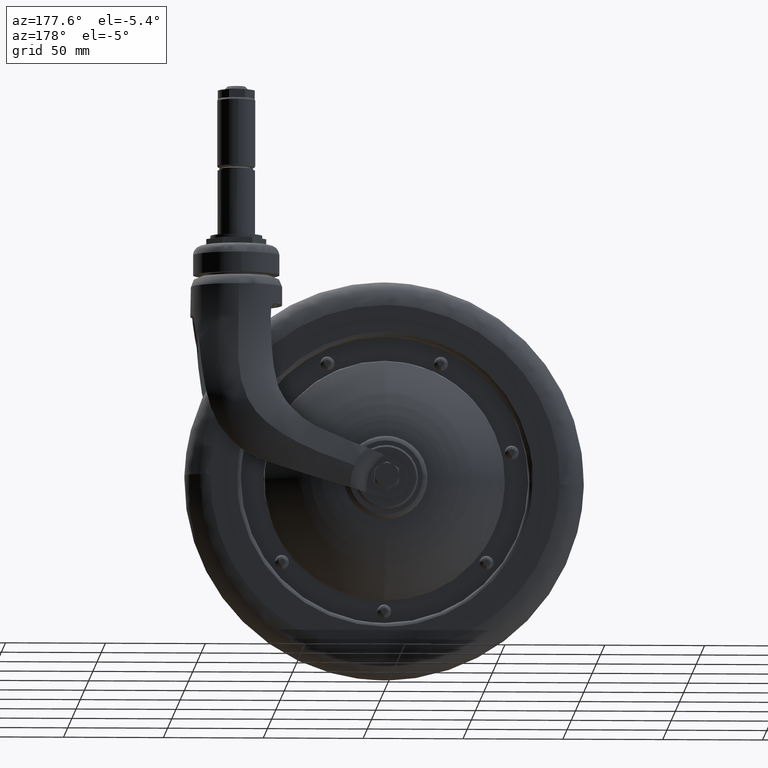
[diagram: clean part render]
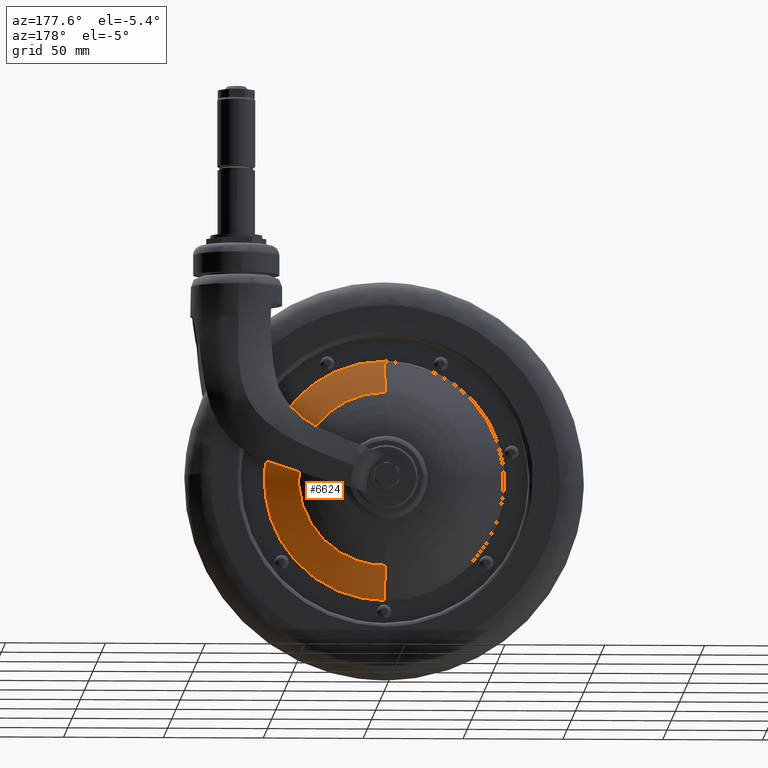
[diagram: same view with one face highlighted and labeled with its STEP entity id]
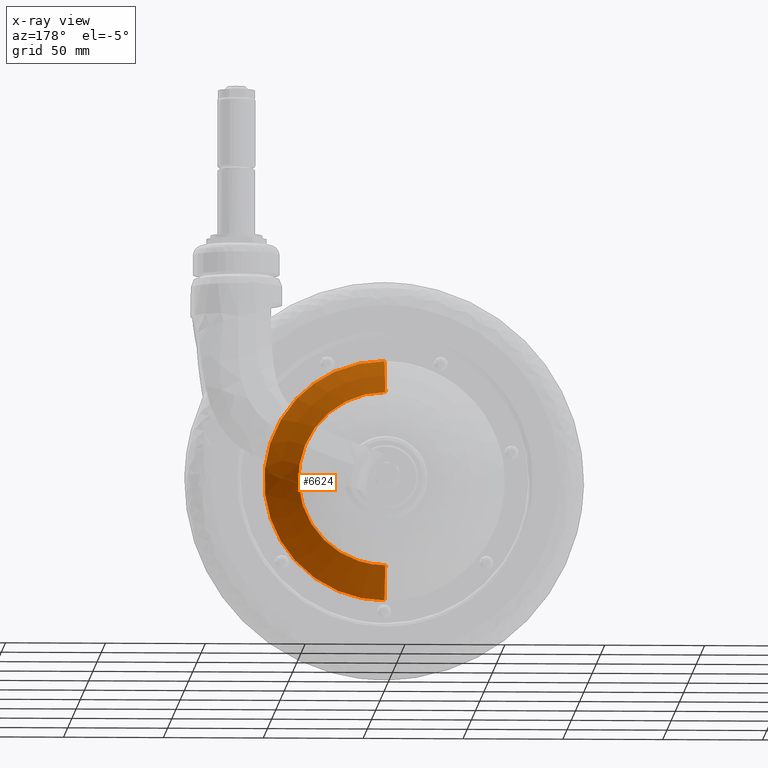
[diagram: x-ray of the same camera — body ghosted, the highlighted face saturated]
A machine part, auxiliary view. The second image highlights one B-rep face of the part: STEP entity #6624.
The next image is the same camera in x-ray: the body ghosted, the highlighted face saturated — about 0% of this face is hidden behind the body in this view.
In plain terms, the highlighted face is a freeform B-spline surface patch.
Its self-contained STEP definition (entity closure, byte-faithful):
#6289=CARTESIAN_POINT('',(0.0,14.426294679062700,43.519748776958892));
#6290=VERTEX_POINT('',#6289);
#6304=CARTESIAN_POINT('',(0.0,14.426293921308540,-43.519750632905136));
#6305=VERTEX_POINT('',#6304);
#6306=CARTESIAN_POINT('',(0.0,14.426294679062700,43.519748776958892));
#6307=CARTESIAN_POINT('',(1.958234319613244,14.426294679063171,43.519799665350220));
#6308=CARTESIAN_POINT('',(6.408782265283229,14.426294676444391,43.218996683128402));
#6309=CARTESIAN_POINT('',(12.597752447048199,14.426294664345670,41.829276745030853));
#6310=CARTESIAN_POINT('',(18.665533025318631,14.426294643781020,39.467114795028841));
#6311=CARTESIAN_POINT('',(24.588087148479140,14.426294614991059,36.160161818262146));
#6312=CARTESIAN_POINT('',(30.507445307196171,14.426294573488960,31.392990462438139));
#6313=CARTESIAN_POINT('',(35.318791138648933,14.426294524320110,25.745234022114438));
#6314=CARTESIAN_POINT('',(38.376662536456017,14.426294480513260,20.713346515456472));
#6315=CARTESIAN_POINT('',(40.594921579025232,14.426294439024730,15.947783258703129));
#6316=CARTESIAN_POINT('',(42.459598622045959,14.426294390390940,10.361399159541291));
#6317=CARTESIAN_POINT('',(43.689636594717008,14.426294325134000,2.865713647985085));
#6318=CARTESIAN_POINT('',(43.476962155958851,14.426294258174760,-4.825544715918529));
#6319=CARTESIAN_POINT('',(41.897453872911022,14.426294191194490,-12.519366388014481));
#6320=CARTESIAN_POINT('',(39.367510222527727,14.426294134611521,-19.018665251604151));
#6321=CARTESIAN_POINT('',(36.218079103335000,14.426294088551311,-24.309338832383968));
#6322=CARTESIAN_POINT('',(32.913604168087460,14.426294050981040,-28.624989854601932));
#6323=CARTESIAN_POINT('',(29.621139242772550,14.426294021422960,-32.020060375947970));
#6324=CARTESIAN_POINT('',(25.546988684835728,14.426293992496580,-35.342746861680332));
#6325=CARTESIAN_POINT('',(21.801198171820250,14.426293971423950,-37.763234049976077));
#6326=CARTESIAN_POINT('',(16.389863351162042,14.426293947706840,-40.487509604515999));
#6327=CARTESIAN_POINT('',(9.345963367366430,14.426293927240581,-42.838365745754260));
#6328=CARTESIAN_POINT('',(3.204427928028192,14.426293921303699,-43.520307632779847));
#6329=CARTESIAN_POINT('',(0.0,14.426293921308540,-43.519750632905136));
#6330=B_SPLINE_CURVE_WITH_KNOTS('',3,(#6306,#6307,#6308,#6309,#6310,#6311,#6312,#6313,#6314,#6315,#6316,#6317,#6318,#6319,#6320,#6321,#6322,#6323,#6324,#6325,#6326,#6327,#6328,#6329),.UNSPECIFIED.,.F.,.U.,(4,1,1,1,1,1,1,1,1,1,1,1,1,1,1,1,1,1,1,1,1,4),(0.000000544095371,5.874723389296463,13.351602167156500,18.959334871309490,25.368232715366869,33.646320943443463,41.657354021639350,47.532180446373843,51.270601450961408,57.412460080430250,65.156427644838701,73.968313579344823,80.377276773210539,88.655314255771231,94.797110197831699,98.802668666870048,104.944470032505710,108.950021370263100,114.557757548820110,118.296187931619800,127.108371012198400,136.721536062595390),.UNSPECIFIED.);
#6331=EDGE_CURVE('',#6290,#6305,#6330,.T.);
#6502=CARTESIAN_POINT('',(0.0,2.983451170038048,-60.058738563332433));
#6503=VERTEX_POINT('',#6502);
#6504=CARTESIAN_POINT('',(0.0,14.426293921308545,-43.519750632905151));
#6505=CARTESIAN_POINT('',(0.0,10.001935130455411,-52.686644345067293));
#6506=CARTESIAN_POINT('',(0.0,2.983451170038048,-60.058738563332426));
#6514=(BOUNDED_CURVE()B_SPLINE_CURVE(2,(#6504,#6505,#6506),.UNSPECIFIED.,.F.,.U.)B_SPLINE_CURVE_WITH_KNOTS((3,3),(0.189422017648159,0.274200104329599),.UNSPECIFIED.)CURVE()GEOMETRIC_REPRESENTATION_ITEM()RATIONAL_B_SPLINE_CURVE((0.913463487858301,0.919587571795010,0.948527744978291))REPRESENTATION_ITEM(''));
#6515=EDGE_CURVE('',#6305,#6503,#6514,.T.);
#6532=CARTESIAN_POINT('',(0.0,2.983451169861591,60.058738563517807));
#6533=VERTEX_POINT('',#6532);
#6549=CARTESIAN_POINT('',(0.0,14.426294679062705,43.519748776958885));
#6550=CARTESIAN_POINT('',(0.0,10.001935781207365,52.686643575787301));
#6551=CARTESIAN_POINT('',(0.0,2.983451169861591,60.058738563517807));
#6559=(BOUNDED_CURVE()B_SPLINE_CURVE(2,(#6549,#6550,#6551),.UNSPECIFIED.,.F.,.U.)B_SPLINE_CURVE_WITH_KNOTS((3,3),(0.189422009371303,0.274200104330698),.UNSPECIFIED.)CURVE()GEOMETRIC_REPRESENTATION_ITEM()RATIONAL_B_SPLINE_CURVE((0.913463486662517,0.919587568969671,0.948527744979041))REPRESENTATION_ITEM(''));
#6560=EDGE_CURVE('',#6290,#6533,#6559,.T.);
#6566=CARTESIAN_POINT('',(0.0,14.864097221645189,42.594073978992583));
#6567=CARTESIAN_POINT('',(0.0,10.151307897140406,52.765506326543886));
#6568=CARTESIAN_POINT('',(0.0,2.299362691383856,60.766467250318968));
#6569=CARTESIAN_POINT('',(42.594073978992583,14.864097221645190,42.594073978992583));
#6570=CARTESIAN_POINT('',(52.765506326543886,10.151307897140407,52.765506326543886));
#6571=CARTESIAN_POINT('',(60.766467250318968,2.299362691383857,60.766467250318968));
#6572=CARTESIAN_POINT('',(42.594073978992583,14.864097221645189,0.0));
#6573=CARTESIAN_POINT('',(52.765506326543886,10.151307897140406,0.0));
#6574=CARTESIAN_POINT('',(60.766467250318968,2.299362691383856,0.0));
#6575=CARTESIAN_POINT('',(42.594073978992583,14.864097221645190,-42.594073978992583));
#6576=CARTESIAN_POINT('',(52.765506326543886,10.151307897140407,-52.765506326543886));
#6577=CARTESIAN_POINT('',(60.766467250318968,2.299362691383857,-60.766467250318968));
#6578=CARTESIAN_POINT('',(0.0,14.864097221645189,-42.594073978992583));
#6579=CARTESIAN_POINT('',(0.0,10.151307897140406,-52.765506326543886));
#6580=CARTESIAN_POINT('',(0.0,2.299362691383856,-60.766467250318968));
#6588=(BOUNDED_SURFACE()B_SPLINE_SURFACE(2,2,((#6566,#6569,#6572,#6575,#6578),(#6567,#6570,#6573,#6576,#6579),(#6568,#6571,#6574,#6577,#6580)),.UNSPECIFIED.,.F.,.F.,.U.)B_SPLINE_SURFACE_WITH_KNOTS((3,3),(3,2,3),(0.0,22.555028219118029),(0.0,100.681179490330510,201.362358980661010),.UNSPECIFIED.)GEOMETRIC_REPRESENTATION_ITEM()RATIONAL_B_SPLINE_SURFACE(((0.912908617255432,0.645523873864950,0.912908617255432,0.645523873864950,0.912908617255432),(0.918390979940247,0.649400489696307,0.918390979940247,0.649400489696307,0.918390979940247),(0.951475800138773,0.672794990413023,0.951475800138773,0.672794990413023,0.951475800138773)))REPRESENTATION_ITEM('')SURFACE());
#6589=ORIENTED_EDGE('',*,*,#6515,.F.);
#6590=ORIENTED_EDGE('',*,*,#6331,.F.);
#6591=ORIENTED_EDGE('',*,*,#6560,.T.);
#6592=CARTESIAN_POINT('',(43.780931671128762,2.983453204127218,41.113031402134808));
#6593=VERTEX_POINT('',#6592);
#6594=CARTESIAN_POINT('',(0.0,2.983451169861591,60.058738563517807));
#6595=CARTESIAN_POINT('',(25.989735590606323,2.983452186980405,60.058739234390075));
#6596=CARTESIAN_POINT('',(43.780931671128769,2.983453204127219,41.113031402134816));
#6604=(BOUNDED_CURVE()B_SPLINE_CURVE(2,(#6594,#6595,#6596),.UNSPECIFIED.,.F.,.U.)B_SPLINE_CURVE_WITH_KNOTS((3,3),(0.500000000000000,0.629740706493074),.UNSPECIFIED.)CURVE()GEOMETRIC_REPRESENTATION_ITEM()RATIONAL_B_SPLINE_CURVE((1.0,0.847999307456448,0.853764032817192))REPRESENTATION_ITEM(''));
#6605=EDGE_CURVE('',#6533,#6593,#6604,.T.);
#6606=ORIENTED_EDGE('',*,*,#6605,.T.);
#6607=CARTESIAN_POINT('',(43.780931671128769,2.983453204127219,41.113031402134816));
#6608=CARTESIAN_POINT('',(60.058724450589899,2.983453029886222,23.778933546894443));
#6609=CARTESIAN_POINT('',(60.058724167736273,2.983452627215337,0.000000961277370));
#6610=CARTESIAN_POINT('',(60.058723453329357,2.983451610184587,-60.058738273020118));
#6611=CARTESIAN_POINT('',(0.0,2.983451170038048,-60.058738563332433));
#6619=(BOUNDED_CURVE()B_SPLINE_CURVE(2,(#6607,#6608,#6609,#6610,#6611),.UNSPECIFIED.,.F.,.U.)B_SPLINE_CURVE_WITH_KNOTS((3,2,3),(0.629740706493074,0.750000000000000,1.0),.UNSPECIFIED.)CURVE()GEOMETRIC_REPRESENTATION_ITEM()RATIONAL_B_SPLINE_CURVE((0.853764032817192,0.859107473730099,1.0,0.707106781186547,1.0))REPRESENTATION_ITEM(''));
#6620=EDGE_CURVE('',#6593,#6503,#6619,.T.);
#6621=ORIENTED_EDGE('',*,*,#6620,.T.);
#6622=EDGE_LOOP('',(#6589,#6590,#6591,#6606,#6621));
#6623=FACE_OUTER_BOUND('',#6622,.T.);
#6624=ADVANCED_FACE('',(#6623),#6588,.T.);